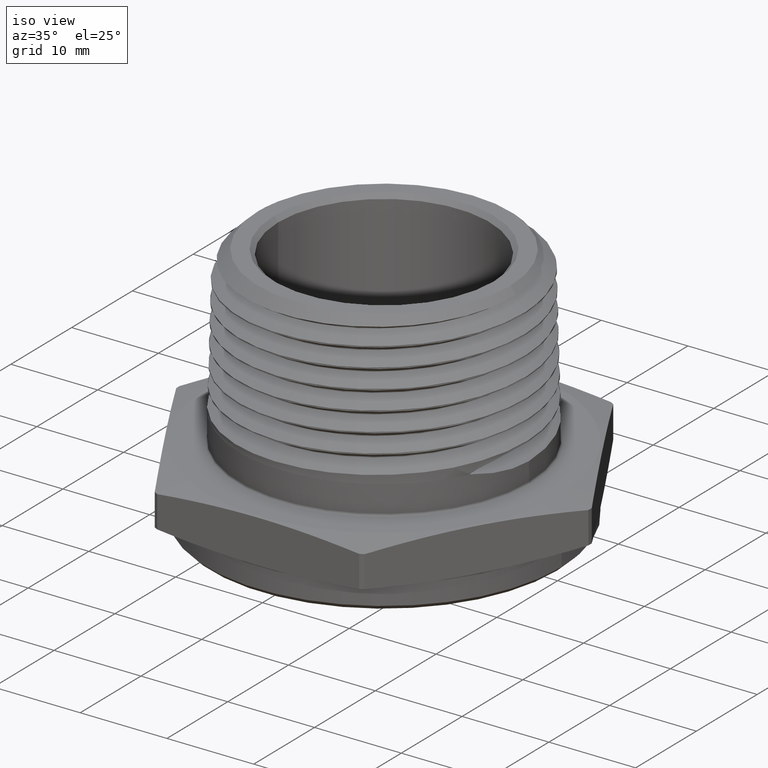
[diagram: clean part render]
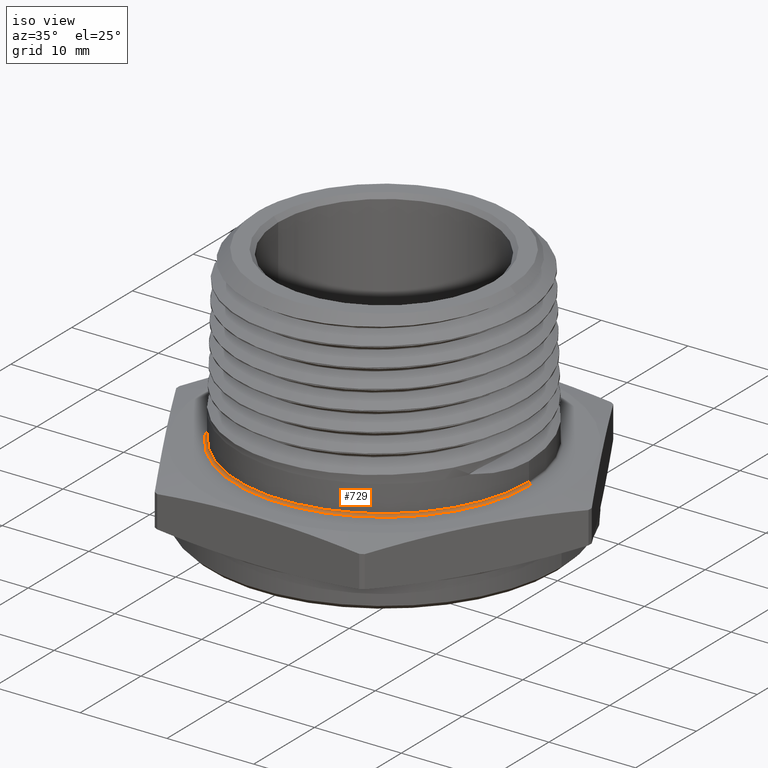
[diagram: same view with one face highlighted and labeled with its STEP entity id]
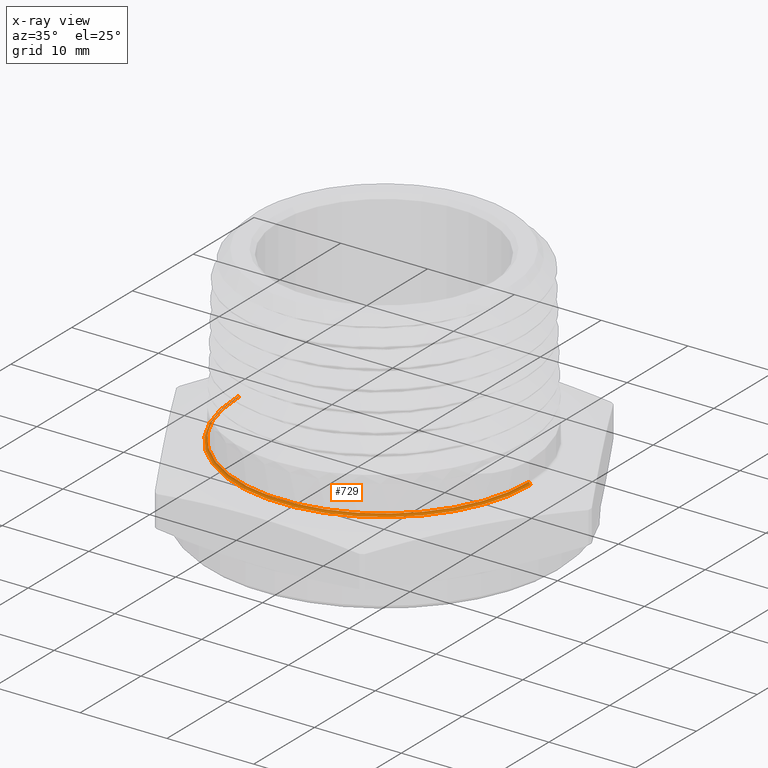
[diagram: x-ray of the same camera — body ghosted, the highlighted face saturated]
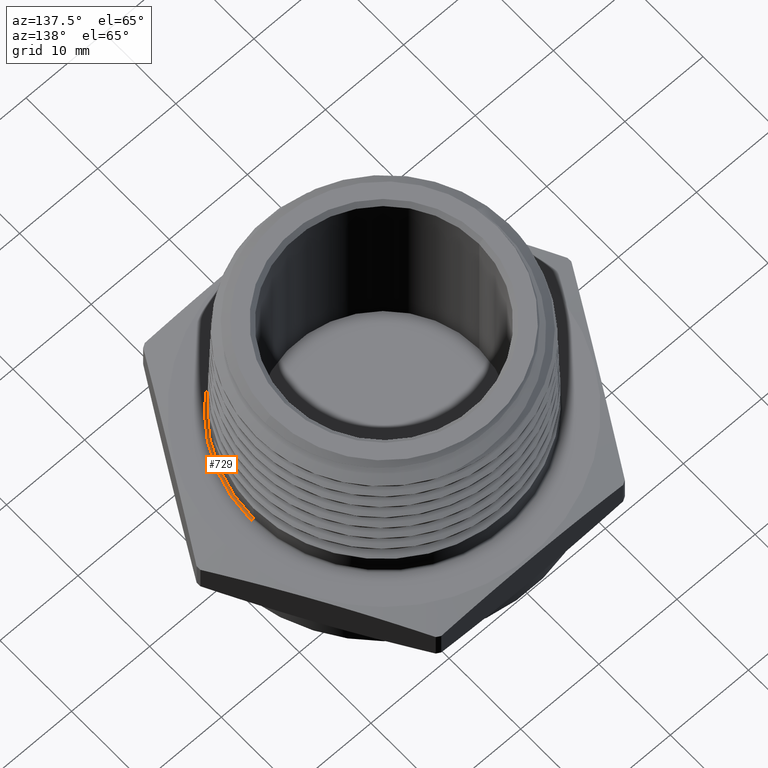
[diagram: same view with one face highlighted and labeled with its STEP entity id]
A machine part, iso view. The second image highlights one B-rep face of the part: STEP entity #729.
The next image is the same camera in x-ray: the body ghosted, the highlighted face saturated — about 3% of this face is hidden behind the body in this view.
A second angle (auxiliary view) of the same face is appended — the face is thin or edge-on in the first view.
In plain terms, the highlighted toroidal blend (fillet) surface has major radius 16.9672 mm and minor (blend) radius 0.254 mm.
Its self-contained STEP definition (entity closure, byte-faithful):
#729 = ADVANCED_FACE ( 'NONE', ( #5951 ), #5955, .F. ) ;
#750 = ORIENTED_EDGE ( 'NONE', *, *, #816, .F. ) ;
#816 = EDGE_CURVE ( 'NONE', #1574, #1580, #6044, .T. ) ;
#818 = EDGE_CURVE ( 'NONE', #1571, #1574, #6046, .T. ) ;
#819 = EDGE_CURVE ( 'NONE', #1571, #1568, #6048, .T. ) ;
#820 = EDGE_CURVE ( 'NONE', #1580, #1568, #6045, .T. ) ;
#972 = AXIS2_PLACEMENT_3D ( 'NONE', #1823, #1821, #1825 ) ;
#1008 = AXIS2_PLACEMENT_3D ( 'NONE', #4659, #4660, #4661 ) ;
#1009 = AXIS2_PLACEMENT_3D ( 'NONE', #4662, #4663, #4664 ) ;
#1010 = AXIS2_PLACEMENT_3D ( 'NONE', #4665, #4666, #4667 ) ;
#1011 = AXIS2_PLACEMENT_3D ( 'NONE', #4670, #4671, #4672 ) ;
#1373 = CARTESIAN_POINT ( 'NONE',  ( -0.6580000000000000300, 0.0000000000000000000, 0.2099999999999999400 ) ) ;
#1375 = CARTESIAN_POINT ( 'NONE',  ( -0.6680000000000000400, 8.180640618304318600E-017, 0.1999999999999999800 ) ) ;
#1389 = CARTESIAN_POINT ( 'NONE',  ( 0.6580000000000000300, 8.058175938389584700E-017, 0.2099999999999999400 ) ) ;
#1395 = CARTESIAN_POINT ( 'NONE',  ( 0.6680000000000000400, 0.0000000000000000000, 0.1999999999999999800 ) ) ;
#1568 = VERTEX_POINT ( 'NONE', #1375 ) ;
#1571 = VERTEX_POINT ( 'NONE', #1373 ) ;
#1574 = VERTEX_POINT ( 'NONE', #1389 ) ;
#1580 = VERTEX_POINT ( 'NONE', #1395 ) ;
#1821 = DIRECTION ( 'NONE',  ( -0.0000000000000000000, 0.0000000000000000000, 1.000000000000000000 ) ) ;
#1823 = CARTESIAN_POINT ( 'NONE',  ( 0.0000000000000000000, 0.0000000000000000000, 0.2099999999999999400 ) ) ;
#1825 = DIRECTION ( 'NONE',  ( 1.000000000000000000, 0.0000000000000000000, 0.0000000000000000000 ) ) ;
#2346 = ORIENTED_EDGE ( 'NONE', *, *, #819, .T. ) ;
#2347 = ORIENTED_EDGE ( 'NONE', *, *, #818, .F. ) ;
#2349 = ORIENTED_EDGE ( 'NONE', *, *, #820, .F. ) ;
#4374 = EDGE_LOOP ( 'NONE', ( #2347, #2346, #2349, #750 ) ) ;
#4659 = CARTESIAN_POINT ( 'NONE',  ( 0.6680000000000000400, 0.0000000000000000000, 0.2099999999999999400 ) ) ;
#4660 = DIRECTION ( 'NONE',  ( 0.0000000000000000000, -1.000000000000000000, 0.0000000000000000000 ) ) ;
#4661 = DIRECTION ( 'NONE',  ( 0.0000000000000000000, 0.0000000000000000000, -1.000000000000000000 ) ) ;
#4662 = CARTESIAN_POINT ( 'NONE',  ( 0.0000000000000000000, 0.0000000000000000000, 0.2099999999999999400 ) ) ;
#4663 = DIRECTION ( 'NONE',  ( -0.0000000000000000000, 0.0000000000000000000, 1.000000000000000000 ) ) ;
#4664 = DIRECTION ( 'NONE',  ( 1.000000000000000000, 0.0000000000000000000, 0.0000000000000000000 ) ) ;
#4665 = CARTESIAN_POINT ( 'NONE',  ( -0.6680000000000000400, 8.180640618304319800E-017, 0.2099999999999999400 ) ) ;
#4666 = DIRECTION ( 'NONE',  ( 1.224646799147353200E-016, 1.000000000000000000, 0.0000000000000000000 ) ) ;
#4667 = DIRECTION ( 'NONE',  ( -1.000000000000000000, 1.224646799147354400E-016, 0.0000000000000000000 ) ) ;
#4670 = CARTESIAN_POINT ( 'NONE',  ( 0.0000000000000000000, 0.0000000000000000000, 0.2000000000000000100 ) ) ;
#4671 = DIRECTION ( 'NONE',  ( 0.0000000000000000000, -0.0000000000000000000, -1.000000000000000000 ) ) ;
#4672 = DIRECTION ( 'NONE',  ( 1.000000000000000000, 0.0000000000000000000, 0.0000000000000000000 ) ) ;
#5951 = FACE_OUTER_BOUND ( 'NONE', #4374, .T. ) ;
#5955 = TOROIDAL_SURFACE ( 'NONE', #972, 0.6680000000000000400, 0.01000000000000000000 ) ;
#6044 = CIRCLE ( 'NONE', #1008, 0.009999999999999995000 ) ;
#6045 = CIRCLE ( 'NONE', #1011, 0.6680000000000000400 ) ;
#6046 = CIRCLE ( 'NONE', #1009, 0.6580000000000000300 ) ;
#6048 = CIRCLE ( 'NONE', #1010, 0.01000000000000003000 ) ;